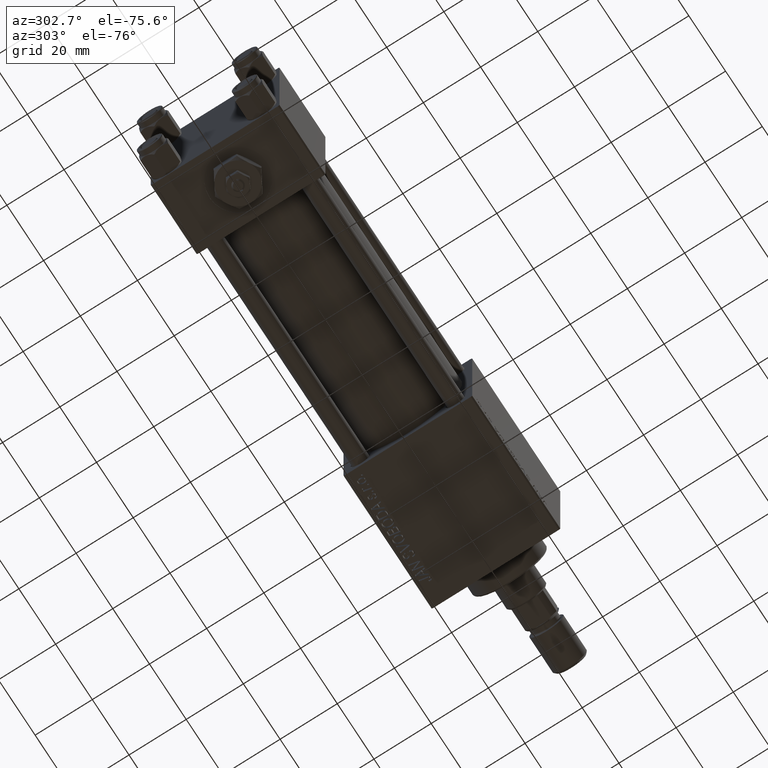
[diagram: clean part render]
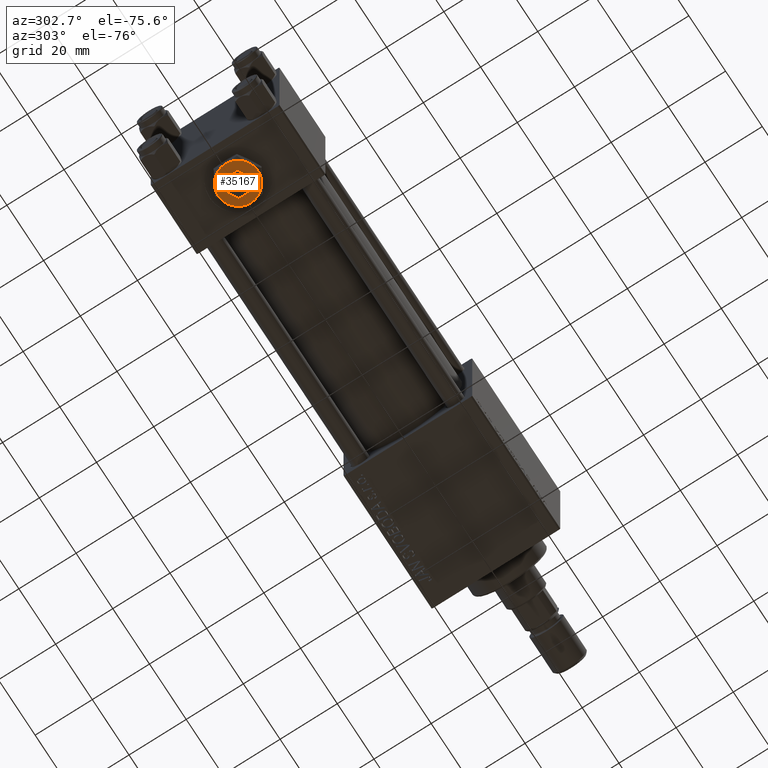
[diagram: same view with one face highlighted and labeled with its STEP entity id]
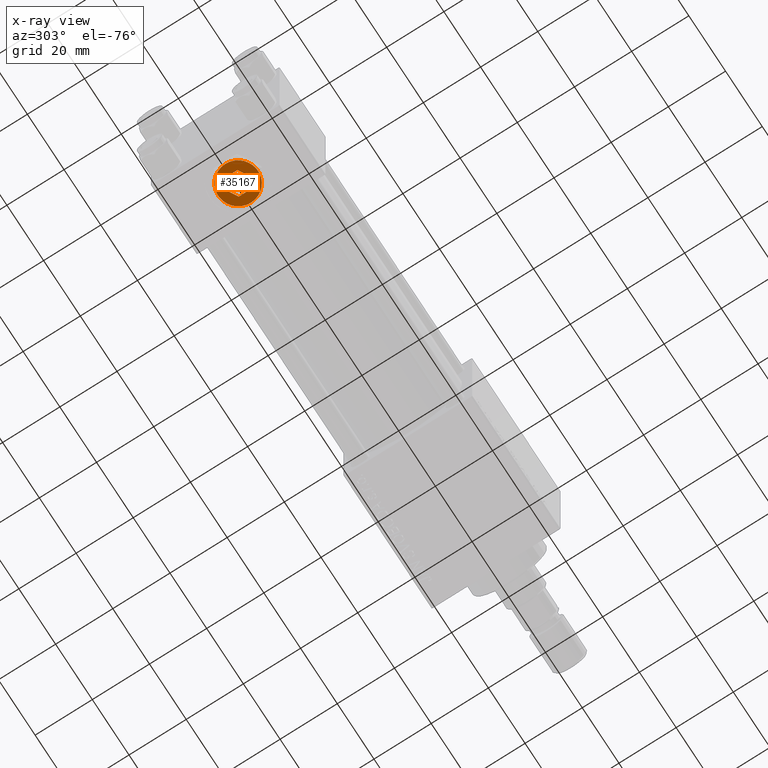
[diagram: x-ray of the same camera — body ghosted, the highlighted face saturated]
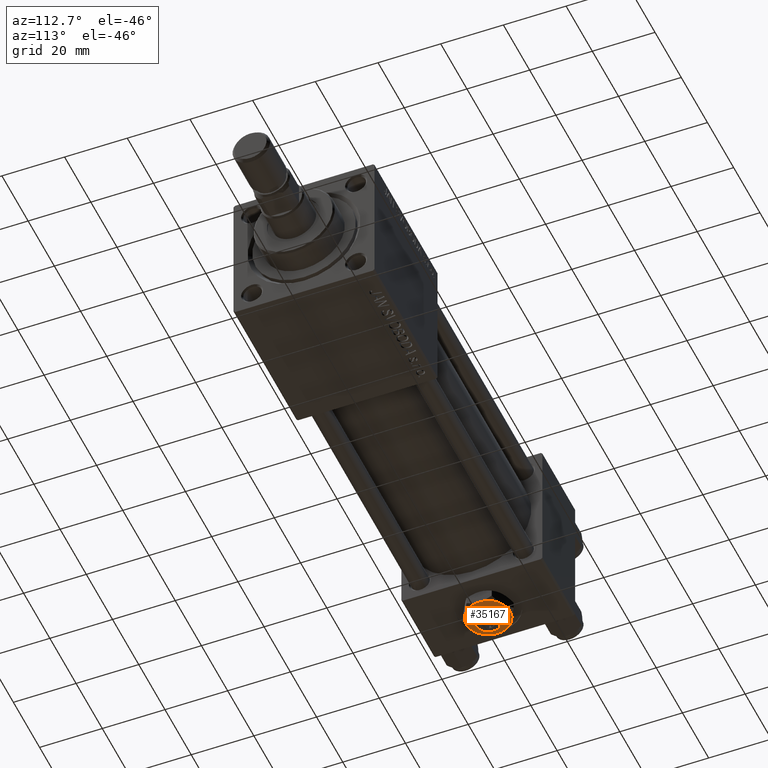
[diagram: same view with one face highlighted and labeled with its STEP entity id]
A machine part, auxiliary view. The second image highlights one B-rep face of the part: STEP entity #35167.
The next image is the same camera in x-ray: the body ghosted, the highlighted face saturated — about 0% of this face is hidden behind the body in this view.
A second angle (auxiliary view) of the same face is appended — the face is thin or edge-on in the first view.
In plain terms, the highlighted planar face has unit normal (0, -0, -1).
Its self-contained STEP definition (entity closure, byte-faithful):
#264 = EDGE_CURVE ( 'NONE', #27258, #23929, #36437, .T. ) ;
#332 = LINE ( 'NONE', #596, #37869 ) ;
#596 = CARTESIAN_POINT ( 'NONE',  ( 0.000000000000000000, 4.041451884327380562, 4.299999999999999822 ) ) ;
#1860 = EDGE_CURVE ( 'NONE', #40824, #3768, #39184, .T. ) ;
#1970 = AXIS2_PLACEMENT_3D ( 'NONE', #11243, #31385, #23170 ) ;
#2265 = CIRCLE ( 'NONE', #45410, 7.000000000000001776 ) ;
#2562 = CARTESIAN_POINT ( 'NONE',  ( 3.500000000000000888, -6.062177826491073951, 4.299999999999999822 ) ) ;
#3304 = VERTEX_POINT ( 'NONE', #22610 ) ;
#3768 = VERTEX_POINT ( 'NONE', #20141 ) ;
#6271 = DIRECTION ( 'NONE',  ( 0.000000000000000000, 0.000000000000000000, 1.000000000000000000 ) ) ;
#7079 = ORIENTED_EDGE ( 'NONE', *, *, #38507, .T. ) ;
#7360 = EDGE_CURVE ( 'NONE', #47270, #17029, #34973, .T. ) ;
#7498 = CARTESIAN_POINT ( 'NONE',  ( 6.999999999999994671, 3.004629197474313724E-15, 4.299999999999999822 ) ) ;
#9034 = VECTOR ( 'NONE', #46488, 1000.000000000000227 ) ;
#9374 = CARTESIAN_POINT ( 'NONE',  ( 3.499999999999998224, 2.020725942163691613, 4.299999999999999822 ) ) ;
#9491 = CARTESIAN_POINT ( 'NONE',  ( -3.499999999999999112, 2.020725942163690725, 4.299999999999999822 ) ) ;
#11243 = CARTESIAN_POINT ( 'NONE',  ( 0.000000000000000000, 0.000000000000000000, 4.299999999999999822 ) ) ;
#11430 = VERTEX_POINT ( 'NONE', #7498 ) ;
#12863 = ORIENTED_EDGE ( 'NONE', *, *, #19603, .F. ) ;
#13766 = VECTOR ( 'NONE', #47384, 1000.000000000000000 ) ;
#15120 = EDGE_CURVE ( 'NONE', #17029, #34124, #2265, .T. ) ;
#15823 = DIRECTION ( 'NONE',  ( 0.000000000000000000, 0.000000000000000000, 1.000000000000000000 ) ) ;
#15886 = DIRECTION ( 'NONE',  ( 0.000000000000000000, 0.000000000000000000, 1.000000000000000000 ) ) ;
#16765 = ORIENTED_EDGE ( 'NONE', *, *, #7360, .T. ) ;
#17029 = VERTEX_POINT ( 'NONE', #21654 ) ;
#17041 = EDGE_CURVE ( 'NONE', #31519, #27258, #40737, .T. ) ;
#17851 = DIRECTION ( 'NONE',  ( 0.000000000000000000, 0.000000000000000000, 1.000000000000000000 ) ) ;
#18168 = EDGE_CURVE ( 'NONE', #11430, #3304, #20873, .T. ) ;
#18707 = CARTESIAN_POINT ( 'NONE',  ( 0.000000000000000000, 0.000000000000000000, 4.299999999999999822 ) ) ;
#18861 = CARTESIAN_POINT ( 'NONE',  ( -2.443687887572056883E-16, -4.041451884327378785, 4.299999999999999822 ) ) ;
#18978 = DIRECTION ( 'NONE',  ( 1.000000000000000000, 0.000000000000000000, 0.000000000000000000 ) ) ;
#19603 = EDGE_CURVE ( 'NONE', #3768, #31519, #31599, .T. ) ;
#20083 = DIRECTION ( 'NONE',  ( 1.000000000000000000, 0.000000000000000000, 0.000000000000000000 ) ) ;
#20141 = CARTESIAN_POINT ( 'NONE',  ( -3.499999999999998668, -2.020725942163689837, 4.299999999999999822 ) ) ;
#20873 = CIRCLE ( 'NONE', #36087, 7.000000000000001776 ) ;
#21296 = VECTOR ( 'NONE', #40662, 1000.000000000000000 ) ;
#21476 = EDGE_CURVE ( 'NONE', #34124, #11430, #45837, .T. ) ;
#21654 = CARTESIAN_POINT ( 'NONE',  ( -3.500000000000000000, -6.062177826491073063, 4.299999999999999822 ) ) ;
#22610 = CARTESIAN_POINT ( 'NONE',  ( 3.500000000000000444, 6.062177826491073063, 4.299999999999999822 ) ) ;
#23158 = EDGE_LOOP ( 'NONE', ( #44534, #26751, #35286, #7079, #16765, #38241 ) ) ;
#23170 = DIRECTION ( 'NONE',  ( 1.000000000000000000, 0.000000000000000000, 0.000000000000000000 ) ) ;
#23238 = CARTESIAN_POINT ( 'NONE',  ( 0.000000000000000000, 4.041451884327380562, 4.299999999999999822 ) ) ;
#23929 = VERTEX_POINT ( 'NONE', #42527 ) ;
#24227 = EDGE_CURVE ( 'NONE', #23929, #39923, #49886, .T. ) ;
#24585 = DIRECTION ( 'NONE',  ( 0.000000000000000000, 0.000000000000000000, 1.000000000000000000 ) ) ;
#24673 = EDGE_CURVE ( 'NONE', #3304, #46890, #34848, .T. ) ;
#25215 = DIRECTION ( 'NONE',  ( -0.8660254037844385966, -0.4999999999999998890, 0.000000000000000000 ) ) ;
#25314 = ORIENTED_EDGE ( 'NONE', *, *, #41570, .F. ) ;
#25558 = VECTOR ( 'NONE', #41688, 1000.000000000000114 ) ;
#25842 = CARTESIAN_POINT ( 'NONE',  ( 0.000000000000000000, 0.000000000000000000, 4.299999999999999822 ) ) ;
#25936 = CARTESIAN_POINT ( 'NONE',  ( -7.000000000000001776, -2.253471898105739040E-15, 4.299999999999999822 ) ) ;
#26103 = PLANE ( 'NONE',  #36076 ) ;
#26385 = AXIS2_PLACEMENT_3D ( 'NONE', #43984, #15886, #28360 ) ;
#26751 = ORIENTED_EDGE ( 'NONE', *, *, #18168, .T. ) ;
#27258 = VERTEX_POINT ( 'NONE', #46114 ) ;
#28296 = CARTESIAN_POINT ( 'NONE',  ( 0.000000000000000000, 0.000000000000000000, 4.299999999999999822 ) ) ;
#28360 = DIRECTION ( 'NONE',  ( 1.000000000000000000, 0.000000000000000000, 0.000000000000000000 ) ) ;
#28838 = CARTESIAN_POINT ( 'NONE',  ( -2.443687887572056883E-16, -4.041451884327378785, 4.299999999999999822 ) ) ;
#29098 = CARTESIAN_POINT ( 'NONE',  ( 0.000000000000000000, 0.000000000000000000, 4.299999999999999822 ) ) ;
#30070 = DIRECTION ( 'NONE',  ( 1.000000000000000000, 0.000000000000000000, -0.000000000000000000 ) ) ;
#31086 = VECTOR ( 'NONE', #44976, 1000.000000000000114 ) ;
#31385 = DIRECTION ( 'NONE',  ( 0.000000000000000000, 0.000000000000000000, 1.000000000000000000 ) ) ;
#31519 = VERTEX_POINT ( 'NONE', #18861 ) ;
#31599 = LINE ( 'NONE', #45969, #9034 ) ;
#32468 = ORIENTED_EDGE ( 'NONE', *, *, #17041, .F. ) ;
#32997 = CARTESIAN_POINT ( 'NONE',  ( 3.499999999999999556, -2.020725942163690281, 4.299999999999999822 ) ) ;
#34029 = AXIS2_PLACEMENT_3D ( 'NONE', #28296, #15823, #44178 ) ;
#34124 = VERTEX_POINT ( 'NONE', #2562 ) ;
#34304 = FACE_OUTER_BOUND ( 'NONE', #23158, .T. ) ;
#34848 = CIRCLE ( 'NONE', #26385, 7.000000000000001776 ) ;
#34973 = CIRCLE ( 'NONE', #1970, 7.000000000000001776 ) ;
#35167 = ADVANCED_FACE ( 'NONE', ( #34304, #50439 ), #26103, .T. ) ;
#35286 = ORIENTED_EDGE ( 'NONE', *, *, #24673, .T. ) ;
#35657 = ORIENTED_EDGE ( 'NONE', *, *, #24227, .F. ) ;
#36076 = AXIS2_PLACEMENT_3D ( 'NONE', #25842, #45439, #30070 ) ;
#36087 = AXIS2_PLACEMENT_3D ( 'NONE', #18707, #6271, #18978 ) ;
#36437 = LINE ( 'NONE', #32997, #21296 ) ;
#36856 = EDGE_LOOP ( 'NONE', ( #25314, #35657, #52100, #32468, #12863, #43465 ) ) ;
#36894 = CIRCLE ( 'NONE', #42810, 7.000000000000001776 ) ;
#37220 = CARTESIAN_POINT ( 'NONE',  ( -3.500000000000000888, 6.062177826491073063, 4.299999999999999822 ) ) ;
#37869 = VECTOR ( 'NONE', #25215, 1000.000000000000227 ) ;
#38241 = ORIENTED_EDGE ( 'NONE', *, *, #15120, .T. ) ;
#38507 = EDGE_CURVE ( 'NONE', #46890, #47270, #36894, .T. ) ;
#38782 = CARTESIAN_POINT ( 'NONE',  ( 0.000000000000000000, 0.000000000000000000, 4.299999999999999822 ) ) ;
#39184 = LINE ( 'NONE', #47643, #13766 ) ;
#39923 = VERTEX_POINT ( 'NONE', #23238 ) ;
#40662 = DIRECTION ( 'NONE',  ( -3.219245568722483357E-16, 1.000000000000000000, 0.000000000000000000 ) ) ;
#40737 = LINE ( 'NONE', #28838, #31086 ) ;
#40824 = VERTEX_POINT ( 'NONE', #9491 ) ;
#41570 = EDGE_CURVE ( 'NONE', #39923, #40824, #332, .T. ) ;
#41688 = DIRECTION ( 'NONE',  ( -0.8660254037844387076, 0.4999999999999998335, 0.000000000000000000 ) ) ;
#42527 = CARTESIAN_POINT ( 'NONE',  ( 3.499999999999998224, 2.020725942163691613, 4.299999999999999822 ) ) ;
#42810 = AXIS2_PLACEMENT_3D ( 'NONE', #29098, #24585, #20083 ) ;
#43465 = ORIENTED_EDGE ( 'NONE', *, *, #1860, .F. ) ;
#43984 = CARTESIAN_POINT ( 'NONE',  ( 0.000000000000000000, 0.000000000000000000, 4.299999999999999822 ) ) ;
#44178 = DIRECTION ( 'NONE',  ( 1.000000000000000000, 0.000000000000000000, 0.000000000000000000 ) ) ;
#44534 = ORIENTED_EDGE ( 'NONE', *, *, #21476, .T. ) ;
#44976 = DIRECTION ( 'NONE',  ( 0.8660254037844388186, 0.4999999999999996669, 0.000000000000000000 ) ) ;
#45410 = AXIS2_PLACEMENT_3D ( 'NONE', #38782, #17851, #46717 ) ;
#45439 = DIRECTION ( 'NONE',  ( 0.000000000000000000, 0.000000000000000000, 1.000000000000000000 ) ) ;
#45837 = CIRCLE ( 'NONE', #34029, 7.000000000000001776 ) ;
#45969 = CARTESIAN_POINT ( 'NONE',  ( -3.499999999999998668, -2.020725942163689837, 4.299999999999999822 ) ) ;
#46114 = CARTESIAN_POINT ( 'NONE',  ( 3.500000000000000000, -2.020725942163690281, 4.299999999999999822 ) ) ;
#46488 = DIRECTION ( 'NONE',  ( 0.8660254037844385966, -0.4999999999999998890, 0.000000000000000000 ) ) ;
#46717 = DIRECTION ( 'NONE',  ( 1.000000000000000000, 0.000000000000000000, 0.000000000000000000 ) ) ;
#46890 = VERTEX_POINT ( 'NONE', #37220 ) ;
#47270 = VERTEX_POINT ( 'NONE', #25936 ) ;
#47384 = DIRECTION ( 'NONE',  ( 1.073081856240828196E-16, -1.000000000000000000, 0.000000000000000000 ) ) ;
#47643 = CARTESIAN_POINT ( 'NONE',  ( -3.499999999999999112, 2.020725942163690725, 4.299999999999999822 ) ) ;
#49886 = LINE ( 'NONE', #9374, #25558 ) ;
#50439 = FACE_BOUND ( 'NONE', #36856, .T. ) ;
#52100 = ORIENTED_EDGE ( 'NONE', *, *, #264, .F. ) ;